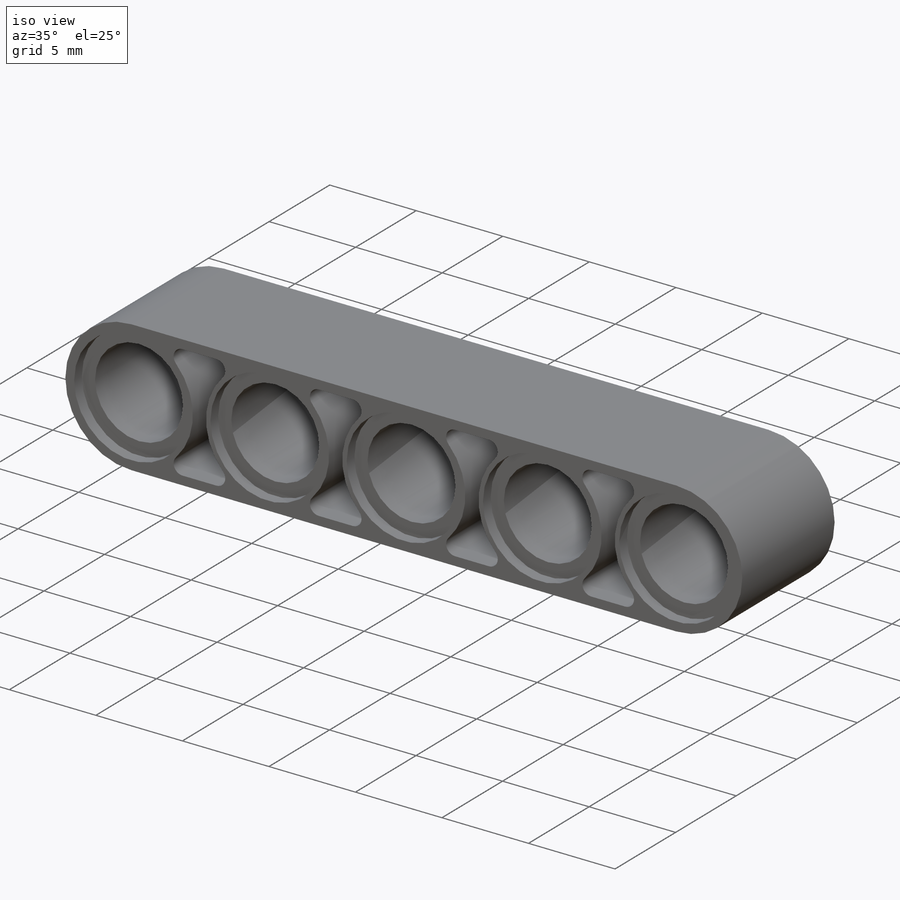
[diagram: iso view]
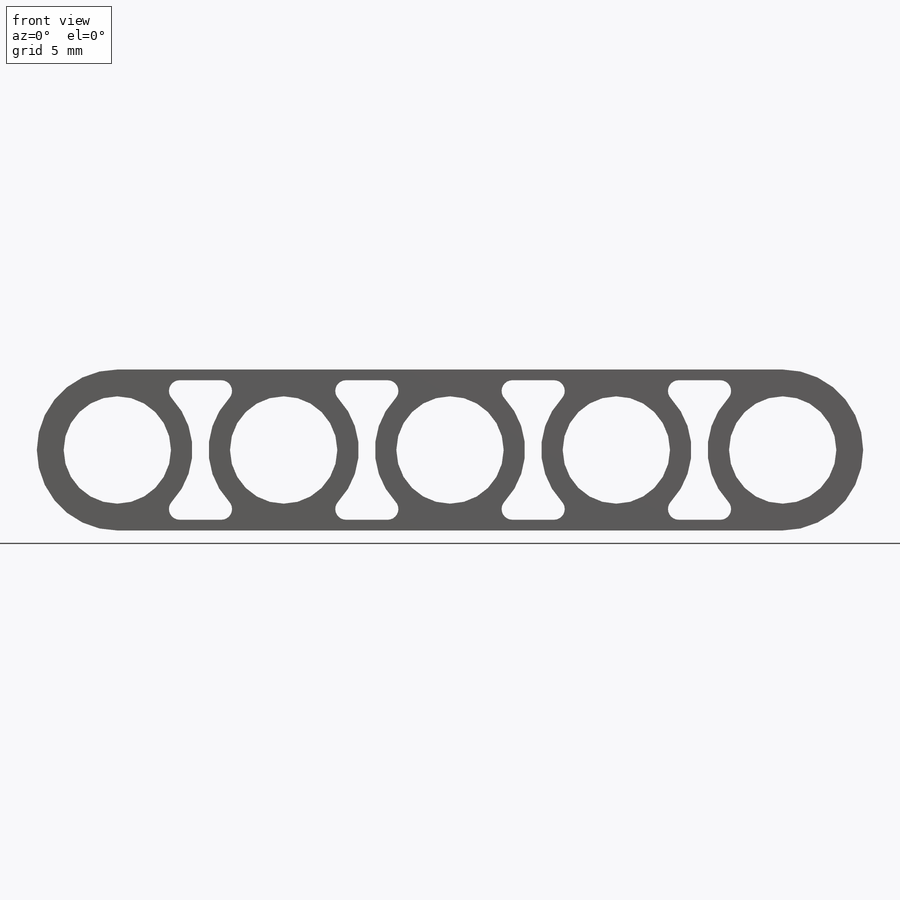
[diagram: front view]
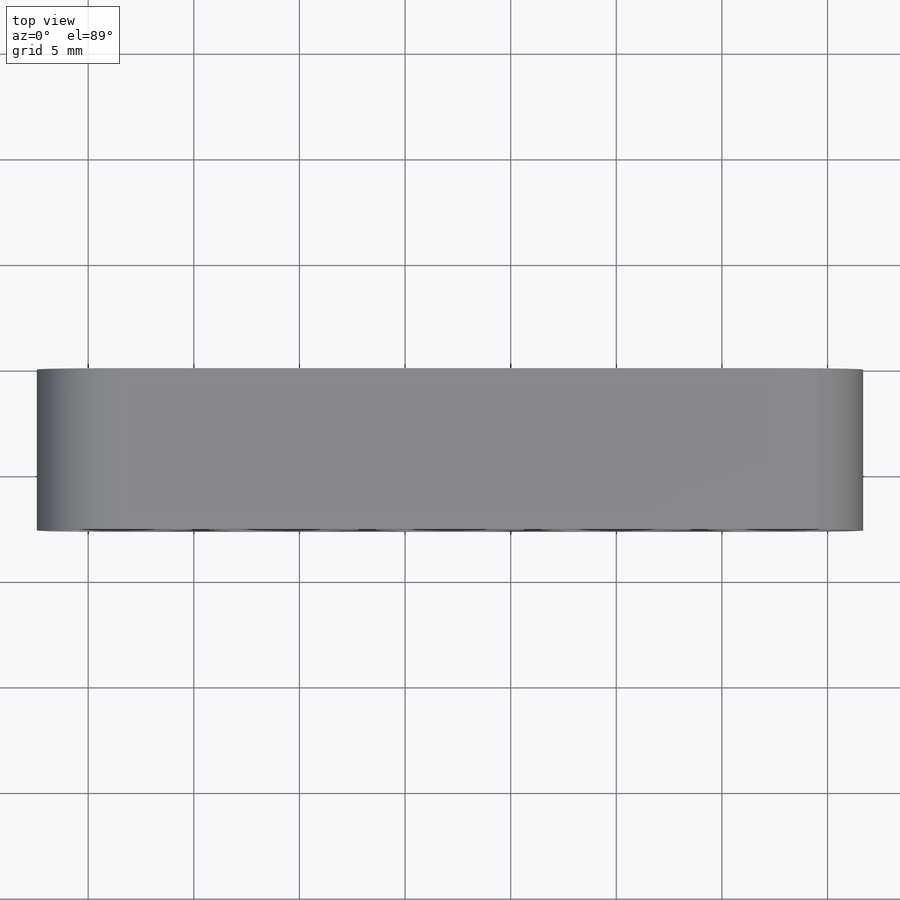
[diagram: top view]
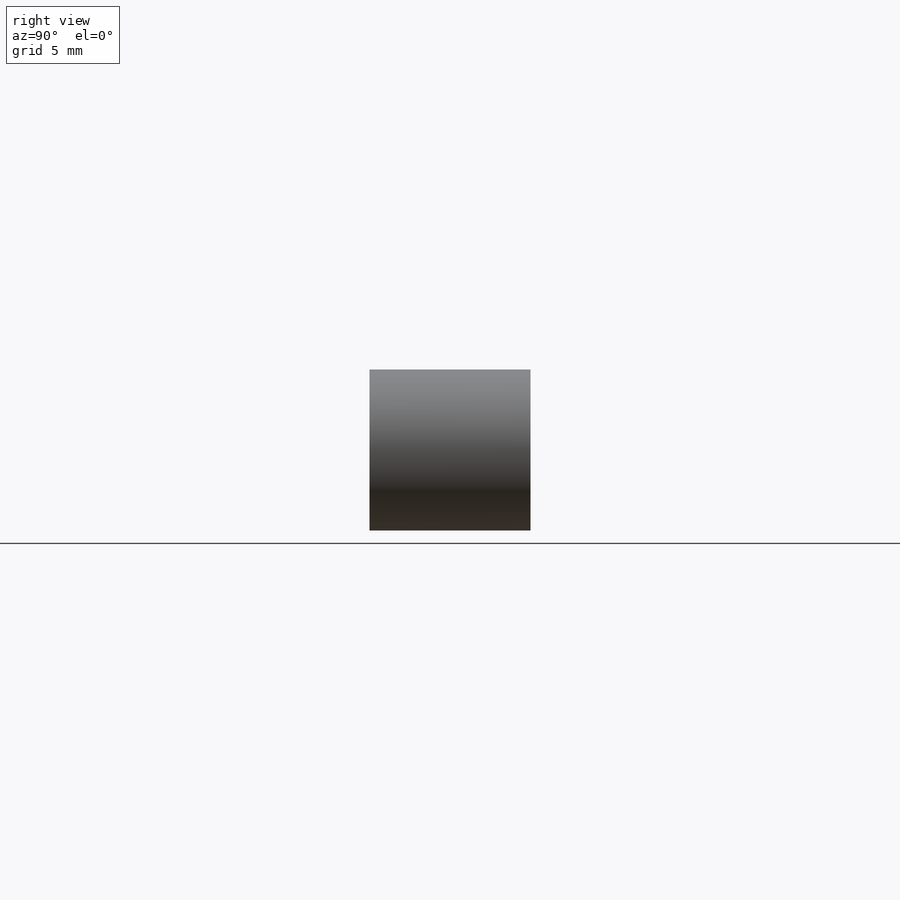
[diagram: right view]
SOLIDWORKS PART (.sldprt)
format: sldprt  version: not decoded by parser v0  size: 697,344 bytes
history: native  units: mm
features: plane x4, sketch x3, extrude x2, mirror x2, material x1, cut_extrude x1, pattern_linear x1, boolean_combine x1 + 1 further entry (+12 scaffold rows collapsed)
feature tree (28):
  scaffold x12  (default folders/planes/origin — collapsed)
  material  "PVC Rigid"
  "Design Table"
  sketch  "Sketch1"  dims[c1.D2=7.62mm c1.D3=~5.005615mm c1.D4=~4.902756mm c1.D6=4.318mm c1.D9=0.508mm c1.D1=4.318mm c1.D5=0.508mm c2.D1=6.604mm c2.D4=5.08mm c3.D1=19.05mm c3.D3=~14.58202mm c3.D4=~12.042473mm c4.D3=0.508mm c4.D4=0.508mm c4.D6=0.508mm c4.D7=0.508mm c4.D8=0.508mm c4.D1=4.7625mm c5.D6=19.05mm c5.D9=19.05mm c6.D6=11.684mm c6.D1=4.7625mm c6.D5=~4.805419mm c6.D7=7.874mm c6.D8=3.937mm c7.D1=0.254mm c7.D5=0.508mm c7.D6=0.508mm c7.D7=0.508mm c8.D1=0.127mm c8.D5=0.508mm c8.D7=0.508mm]
  extrude  "Boss-Extrude1"  Depth=3.81mm
  plane  "Plane2"
  extrude  "Boss-Extrude2"  [1 undecoded]
  sketch  "Sketch1<7>"  dims[D1=3.81mm]
  sketch  "Sketch2"
  cut_extrude  "Cut-Extrude1"  Depth=0.635mm
  pattern_linear  "LPattern1"  Count1=3 Count2=1 Spacing1=7.874mm Spacing2=50mm
  plane  "Plane1"  Offset=19.558mm
  mirror  "Mirror2"
  boolean_combine  "Combine1"
  plane  "Plane3"  Offset=3.81mm
  mirror  "Mirror3"
  plane  "Plane4"
decode coverage: 5 of 10 modeling features carry decoded parameters; 1 rows unclassified (native names shown)
note: ~ marks probable driven/reference dimensions
note: 1 parameter value undecoded
note: suppression state not decoded; provenance and decode notes live in map.json
